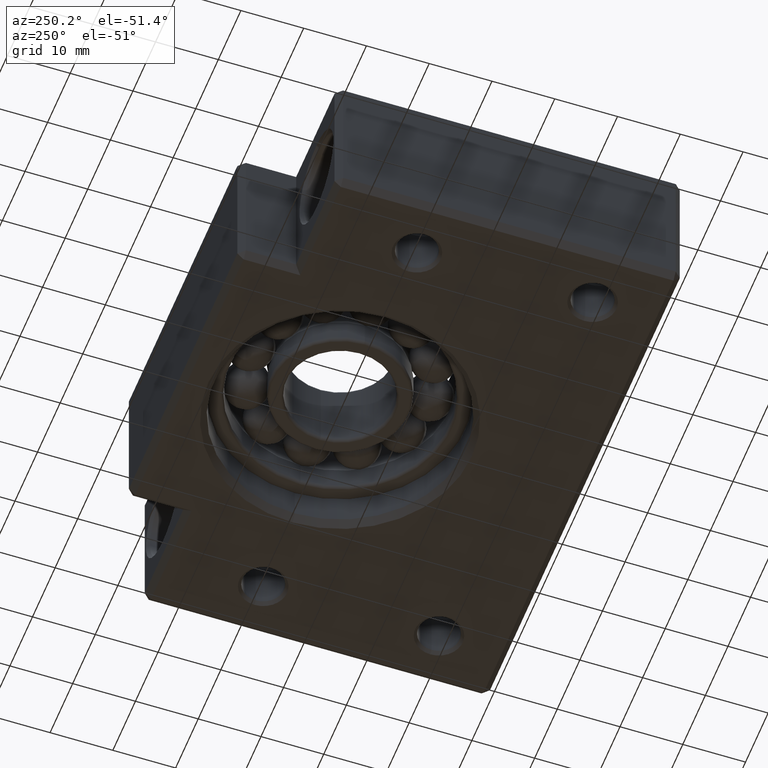
[diagram: clean part render]
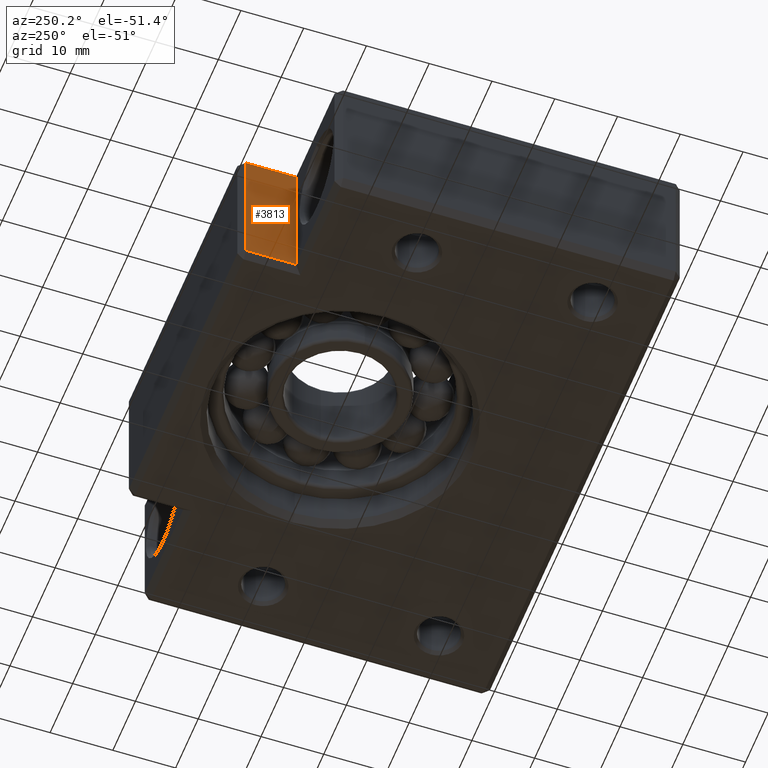
[diagram: same view with one face highlighted and labeled with its STEP entity id]
A machine part, auxiliary view. The second image highlights one B-rep face of the part: STEP entity #3813.
In plain terms, the highlighted planar face has unit normal (1, 0, -0).
Its self-contained STEP definition (entity closure, byte-faithful):
#1747 = DIRECTION ( 'NONE',  ( 0.0000000000000000000, -1.000000000000000000, 0.0000000000000000000 ) ) ;
#1748 = VECTOR ( 'NONE', #1747, 1000.000000000000000 ) ;
#1749 = CARTESIAN_POINT ( 'NONE',  ( -24.99999999999998900, 64.00000000000000000, -10.50000000000001200 ) ) ;
#1750 = LINE ( 'NONE', #1749, #1748 ) ;
#1751 = DIRECTION ( 'NONE',  ( 0.0000000000000000000, 0.0000000000000000000, -1.000000000000000000 ) ) ;
#1752 = VECTOR ( 'NONE', #1751, 1000.000000000000000 ) ;
#1753 = CARTESIAN_POINT ( 'NONE',  ( -24.99999999999998900, 63.00000000000001400, 11.50000000000000000 ) ) ;
#1754 = LINE ( 'NONE', #1753, #1752 ) ;
#1755 = CARTESIAN_POINT ( 'NONE',  ( -24.99999999999998900, 55.00000000000000700, -10.50000000000001200 ) ) ;
#1756 = CARTESIAN_POINT ( 'NONE',  ( -24.99999999999998900, 63.00000000000001400, 10.50000000000001200 ) ) ;
#1757 = DIRECTION ( 'NONE',  ( -0.0000000000000000000, 0.0000000000000000000, -1.000000000000000000 ) ) ;
#1758 = DIRECTION ( 'NONE',  ( 1.000000000000000000, 0.0000000000000000000, -0.0000000000000000000 ) ) ;
#1759 = CARTESIAN_POINT ( 'NONE',  ( -24.99999999999998900, 64.00000000000000000, 11.50000000000000000 ) ) ;
#1760 = AXIS2_PLACEMENT_3D ( 'NONE', #1759, #1758, #1757 ) ;
#1761 = PLANE ( 'NONE',  #1760 ) ;
#1762 = FACE_OUTER_BOUND ( 'NONE', #3814, .T. ) ;
#1782 = CARTESIAN_POINT ( 'NONE',  ( -24.99999999999998900, 55.00000000000000700, 10.49999999999999800 ) ) ;
#1783 = DIRECTION ( 'NONE',  ( -0.0000000000000000000, -0.0000000000000000000, -1.000000000000000000 ) ) ;
#1784 = VECTOR ( 'NONE', #1783, 1000.000000000000000 ) ;
#1785 = CARTESIAN_POINT ( 'NONE',  ( -24.99999999999998900, 55.00000000000000700, 11.50000000000000000 ) ) ;
#1786 = LINE ( 'NONE', #1785, #1784 ) ;
#1806 = CARTESIAN_POINT ( 'NONE',  ( -24.99999999999998900, 63.00000000000001400, -10.50000000000001200 ) ) ;
#1832 = DIRECTION ( 'NONE',  ( 0.0000000000000000000, 1.000000000000000000, 0.0000000000000000000 ) ) ;
#1833 = VECTOR ( 'NONE', #1832, 1000.000000000000000 ) ;
#1834 = CARTESIAN_POINT ( 'NONE',  ( -24.99999999999998900, 64.00000000000000000, 10.50000000000001200 ) ) ;
#1835 = LINE ( 'NONE', #1834, #1833 ) ;
#3813 = ADVANCED_FACE ( 'NONE', ( #1762 ), #1761, .F. ) ;
#3814 = EDGE_LOOP ( 'NONE', ( #3824, #3818, #3820, #3834 ) ) ;
#3815 = VERTEX_POINT ( 'NONE', #1756 ) ;
#3816 = VERTEX_POINT ( 'NONE', #1755 ) ;
#3817 = EDGE_CURVE ( 'NONE', #3815, #3823, #1754, .T. ) ;
#3818 = ORIENTED_EDGE ( 'NONE', *, *, #3819, .T. ) ;
#3819 = EDGE_CURVE ( 'NONE', #3823, #3816, #1750, .T. ) ;
#3820 = ORIENTED_EDGE ( 'NONE', *, *, #3836, .F. ) ;
#3823 = VERTEX_POINT ( 'NONE', #1806 ) ;
#3824 = ORIENTED_EDGE ( 'NONE', *, *, #3817, .T. ) ;
#3834 = ORIENTED_EDGE ( 'NONE', *, *, #3839, .T. ) ;
#3836 = EDGE_CURVE ( 'NONE', #3837, #3816, #1786, .T. ) ;
#3837 = VERTEX_POINT ( 'NONE', #1782 ) ;
#3839 = EDGE_CURVE ( 'NONE', #3837, #3815, #1835, .T. ) ;